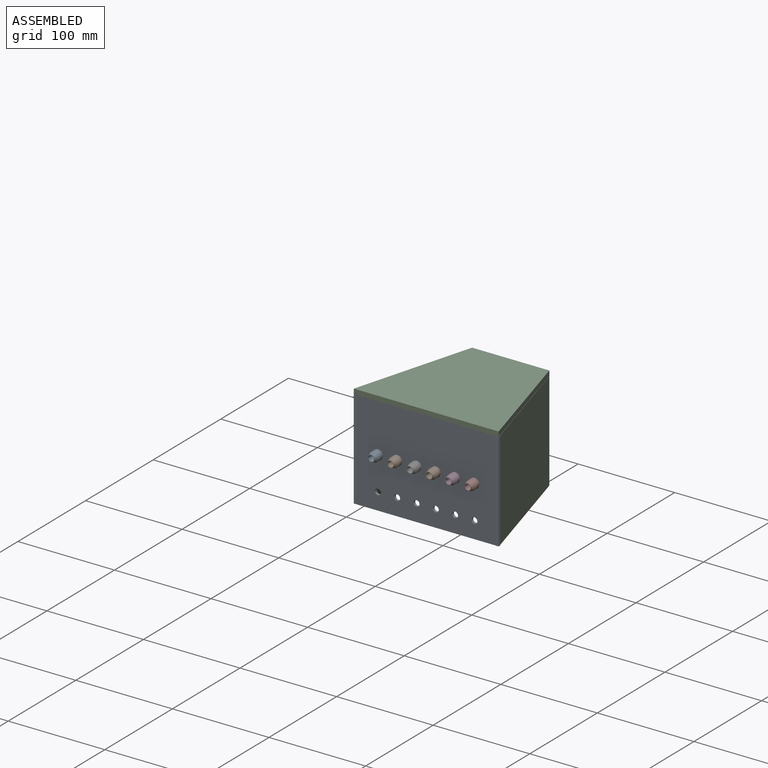
[diagram: assembled view]
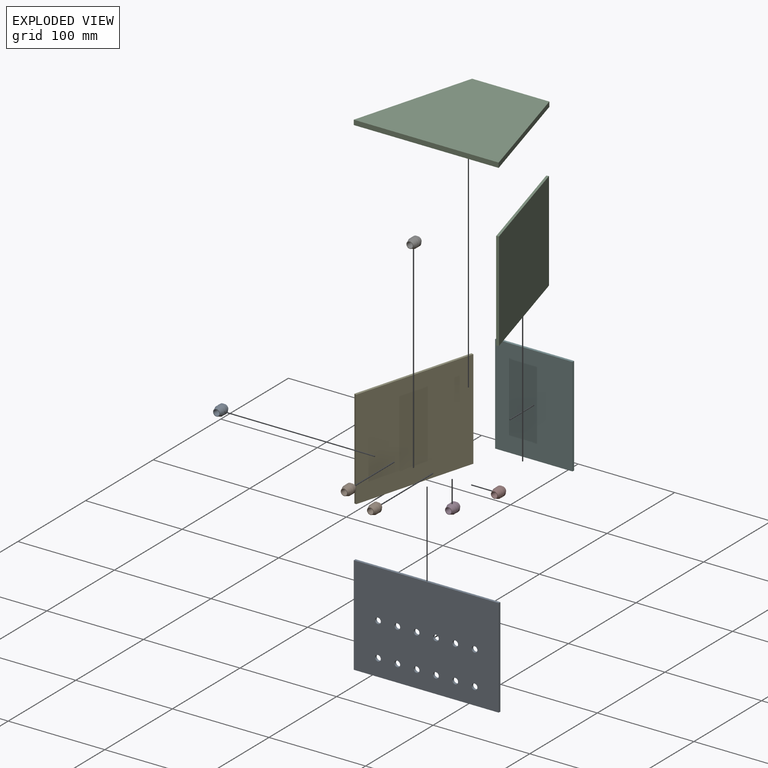
[diagram: exploded view]
GUIDED TOUR — MATED ASSEMBLY (Onshape document 8164049e80e0e85f0b8eb4ec, AutoMate assembly 8164049e80e0e85f0b8eb4ec_cf131b7ac0245d85ee86069a_5f289b0e228928b1679af581_default)

This assembly has 11 components, labeled P0..P10 below (a component is one placed occurrence of a part; the same part can appear more than once), held together by 10 mates. A mate is a constraint between two components; its type names the relative motion it leaves free:
  CYLINDRICAL — leaves both rotation about and translation along the listed axis free,
  FASTENED — locks the two components together rigidly (no relative motion).
Axis/direction vectors are unit vectors and 'through' points are millimeter coordinates, both in the assembly's world frame.

MATES
  1. CYLINDRICAL "Cylindrical 1": P10 <-> P4, axis (0.000, 0.000, -1.000) through (2.80, 108.94, -38.92) mm
  2. FASTENED "Fastened 6": P8 <-> P6, direction (0.000, 1.000, 0.000) through (50.30, 48.94, -88.92) mm
  3. FASTENED "Fastened 8": P8 <-> P7, direction (0.000, 1.000, 0.000) through (110.30, 48.94, -88.92) mm
  4. FASTENED "Fastened 1": P8 <-> P10, direction (0.000, 0.000, 1.000) through (60.30, 46.44, -38.92) mm
  5. FASTENED "Fastened 2": P5 <-> P10, direction (0.000, 0.000, 1.000) through (60.30, 171.44, -38.92) mm
  6. FASTENED "Fastened 7": P8 <-> P9, direction (0.000, 1.000, 0.000) through (70.30, 48.94, -88.92) mm
  7. CYLINDRICAL "Cylindrical 2": P10 <-> P2, axis (0.000, 0.000, -1.000) through (117.80, 108.94, -38.92) mm
  8. FASTENED "Fastened 5": P8 <-> P1, direction (0.000, 1.000, 0.000) through (30.30, 48.94, -88.92) mm
  9. FASTENED "Fastened 9": P8 <-> P0, direction (0.000, 1.000, 0.000) through (10.30, 48.94, -88.92) mm
  10. FASTENED "Fastened 10": P8 <-> P3, direction (0.000, 1.000, 0.000) through (90.30, 48.94, -88.92) mm

ASSEMBLY ORDER
  1. P4 — the base component [order verified]
  2. P2 [order verified]
  3. P5 [order verified]
  4. P1 [order verified]
  5. P9 [order verified]
  6. P8 [order verified]
  7. P6 [order verified]
  8. P3 [order verified]
  9. P0 [order verified]
  10. P7 [order verified]
  11. P10 [order verified]
(P5 verified with a relaxed clearance tolerance: the source model stores slight part interference there.)
Order-tag legend:
  [order verified] — this step's position reverses a verified removal order: the component was checked to insert without passing through the ones already placed.

Of the 11 components, 4 carry the full construction recipe — the FeatureScript program that regenerates the part's solid from scratch; the rest are supplied as boundary geometry only.
Each toured component is shown spotlighted twice — in the assembled view, then in the exploded view, where a leader line traces a displaced component back to its assembled socket (saturated green if recipe-attached, orange if geometry-only; every other component desaturated gray) — followed by its recipe or geometry summary and the mates that hold it.
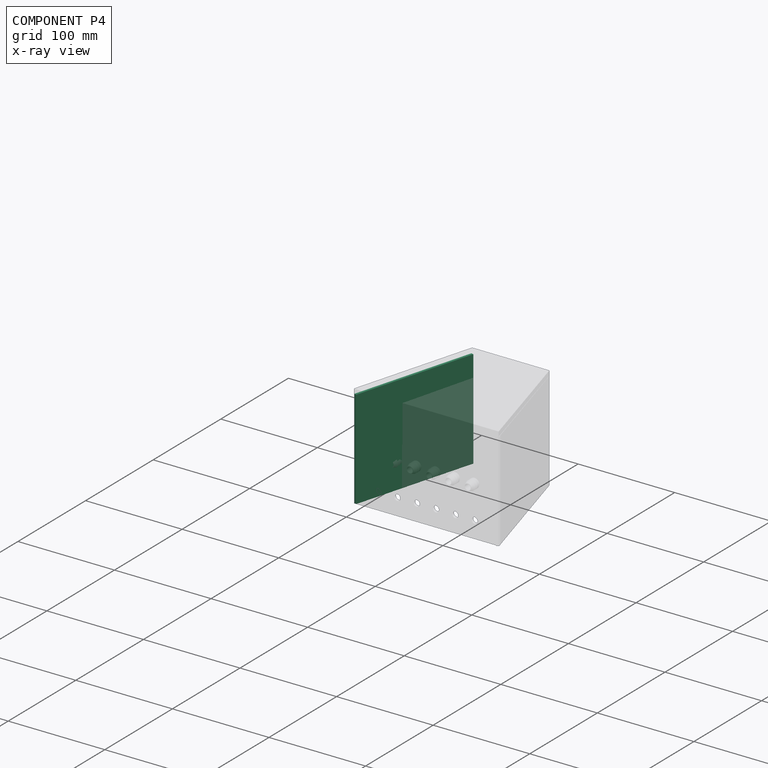
[diagram: component P4 — x-ray view]
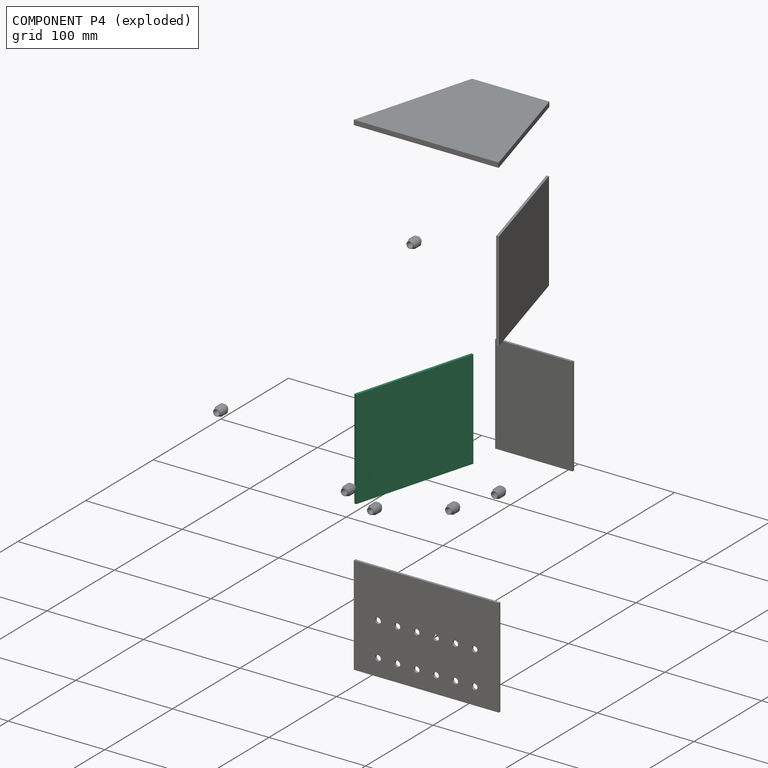
[diagram: component P4 — exploded]
COMPONENT P4 — same part as P2 (CADFS 00303909); its construction recipe is shown at P2.
Held by: CYLINDRICAL mate "Cylindrical 1" to P10.
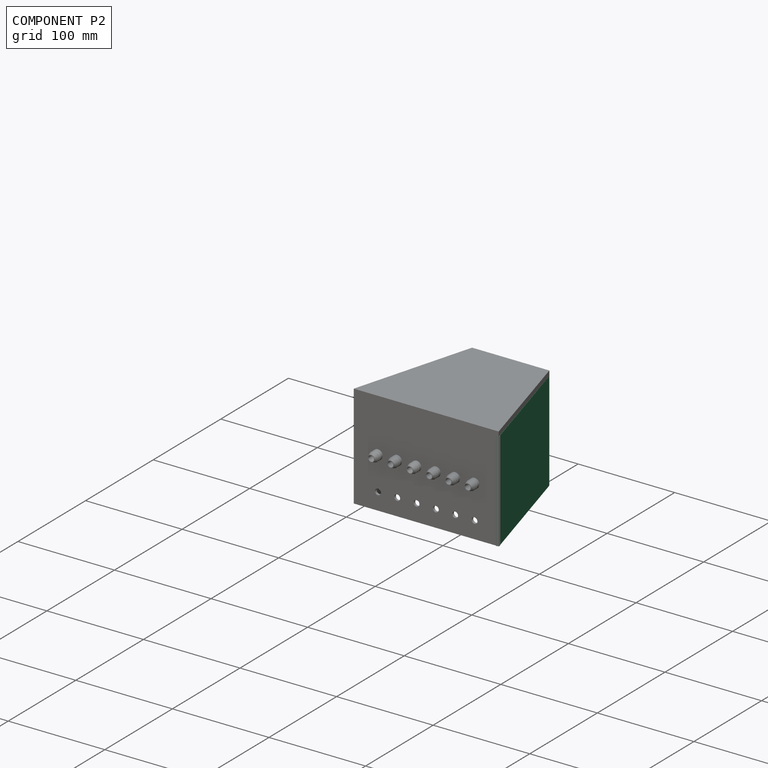
[diagram: component P2 — assembled]
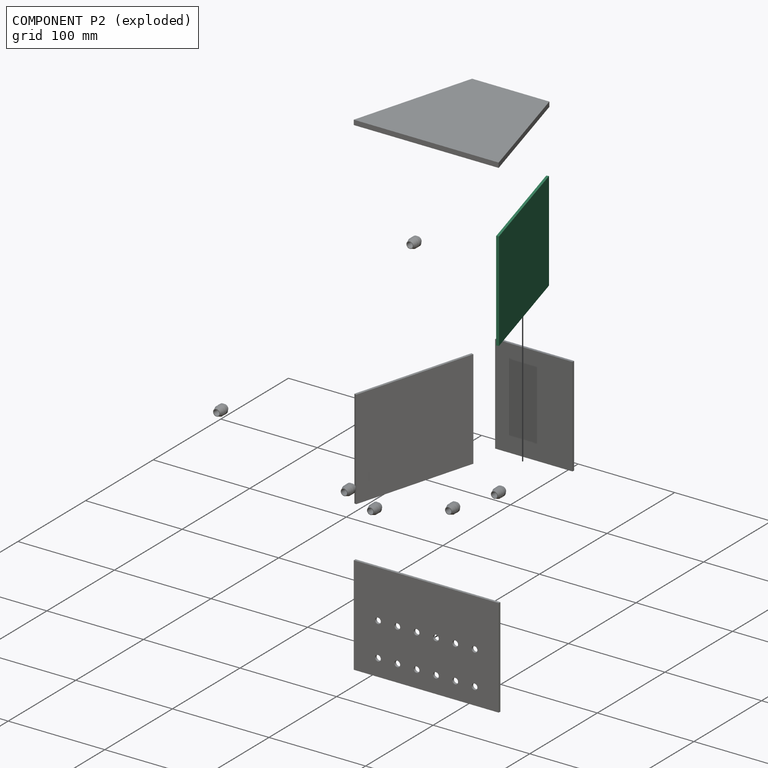
[diagram: component P2 — exploded]
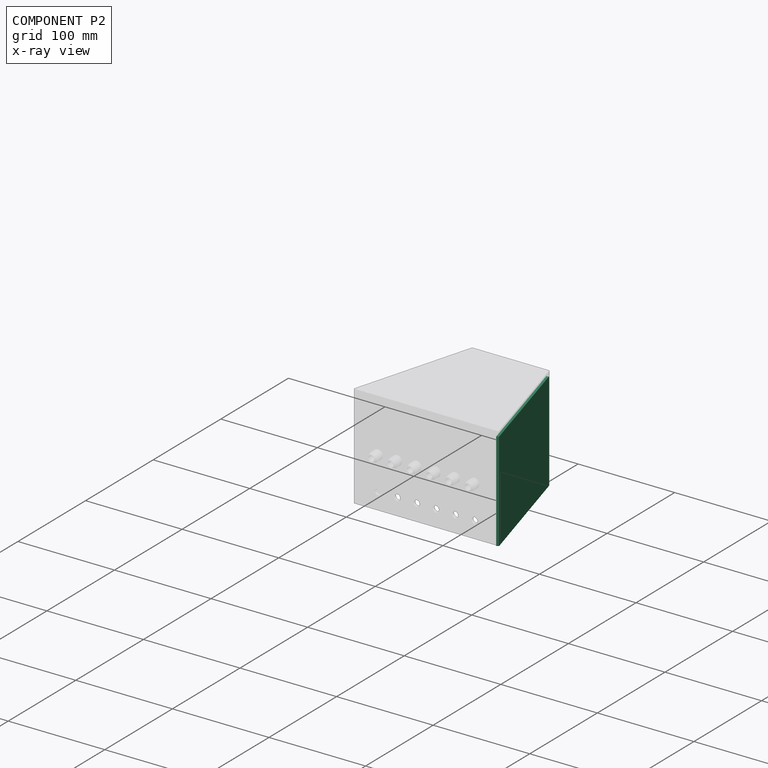
[diagram: component P2 — x-ray view]
COMPONENT P2 — recipe-attached (CADFS 00303909, mesh-verified: the recipe's output STEP matches this component's geometry to below the mesh-comparison resolution (tessellation chordal tolerance ~0.247 mm)).
Held by: CYLINDRICAL mate "Cylindrical 2" to P10.
Construction recipe (FeatureScript — the CAD program that rebuilds this solid; sketch coordinates are in the units given by the * unit suffixes, e.g. mm):

FeatureScript 1511;
import(path : "onshape/std/geometry.fs", version : "1511.0");
import(path : "onshape/std/common.fs", version : "1511.0");
const mm = millimeter;
const VERTEX = EntityType.VERTEX;
const EDGE = EntityType.EDGE;
const FACE = EntityType.FACE;
const BODY = EntityType.BODY;
function v(x, y){return vector(x, y);}
function OD(order){return orderDisambiguation(order);}
function OSD(set){return originalSetDisambiguation(set);}
function TD(topology){return topologyDisambiguation(topology);}
function TDD(query){return trueDependencyDisambiguation(query);}
function sQuery(a, b, c) {return sketchEntityQuery(a, b, c);}

annotation { "Feature Type Name" : "Feature", "Feature Type Description" : "" }
export const myFeature = defineFeature(function(context is Context, id is Id, definition is map)
    precondition{}
    {
        {
            var Q0;
            Q0=qCreatedBy(makeId("Front.planeOp"),FACE);
            var sketch = newSketch(context, id + "F0", { "sketchPlane" : qUnion([Q0])});
            skLineSegment(sketch, "E0.bottom", {"start": v(64.25, -51.25) * mm, "end": v(-64.25, -51.25) * mm});
            skLineSegment(sketch, "E0.top", {"start": v(64.25, 51.25) * mm, "end": v(-64.25, 51.25) * mm});
            skLineSegment(sketch, "E0.left", {"start": v(64.25, -51.25) * mm, "end": v(64.25, 51.25) * mm});
            skLineSegment(sketch, "E0.right", {"start": v(-64.25, -51.25) * mm, "end": v(-64.25, 51.25) * mm});
            skPoint(sketch, "E0.middle", {"position": v(0, 0) * mm});
            skSolve(sketch);
        }
        {
            var Q0;
            Q0 = qSketchRegion(id + "F0", true);
            extrude(context, id + "F1", {"entities" : qUnion([Q0]), "endBound" : BoundingType.SYMMETRIC, "depth" : 2.5 * mm});
        }
    });
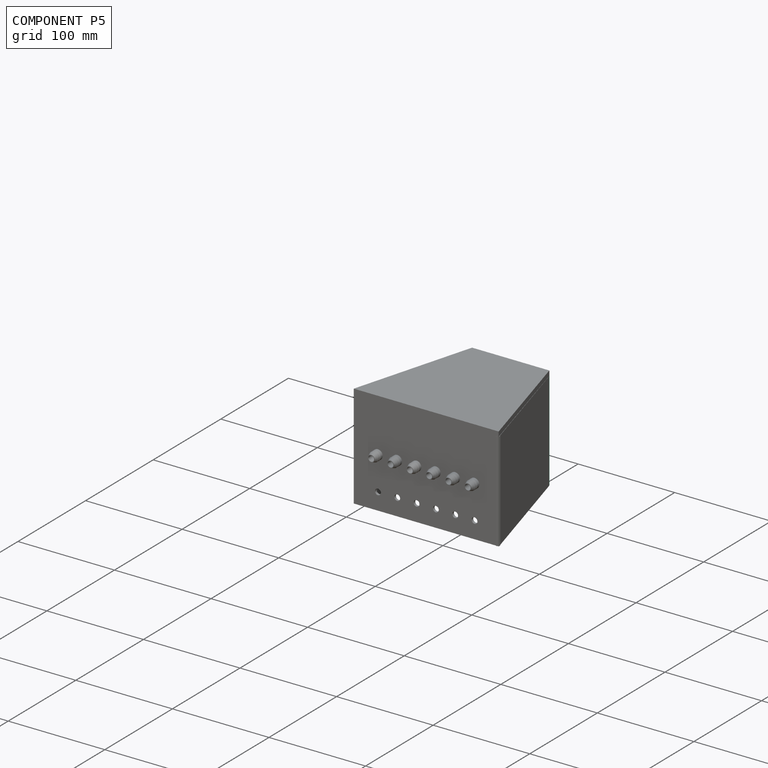
[diagram: component P5 — assembled]
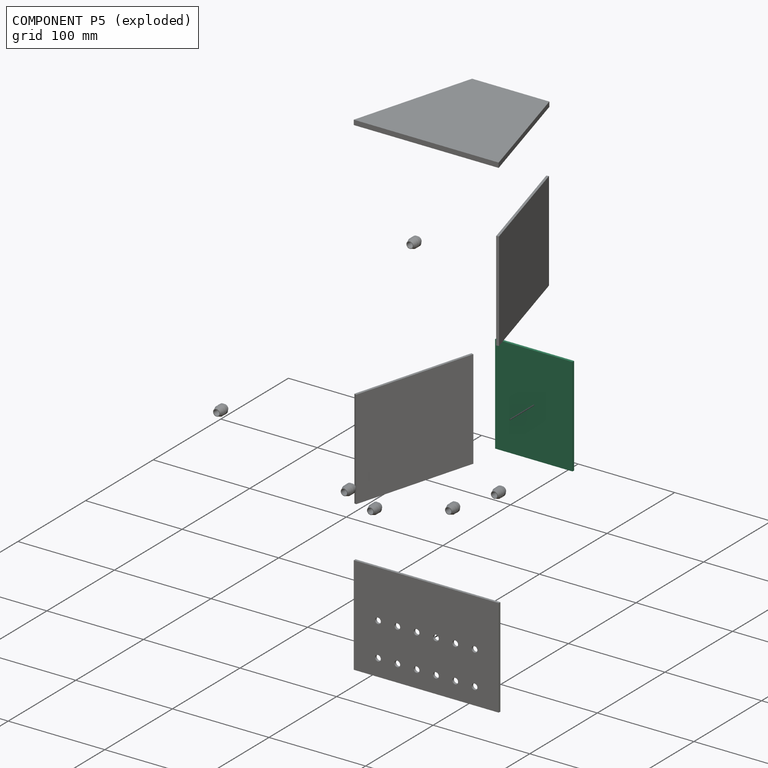
[diagram: component P5 — exploded]
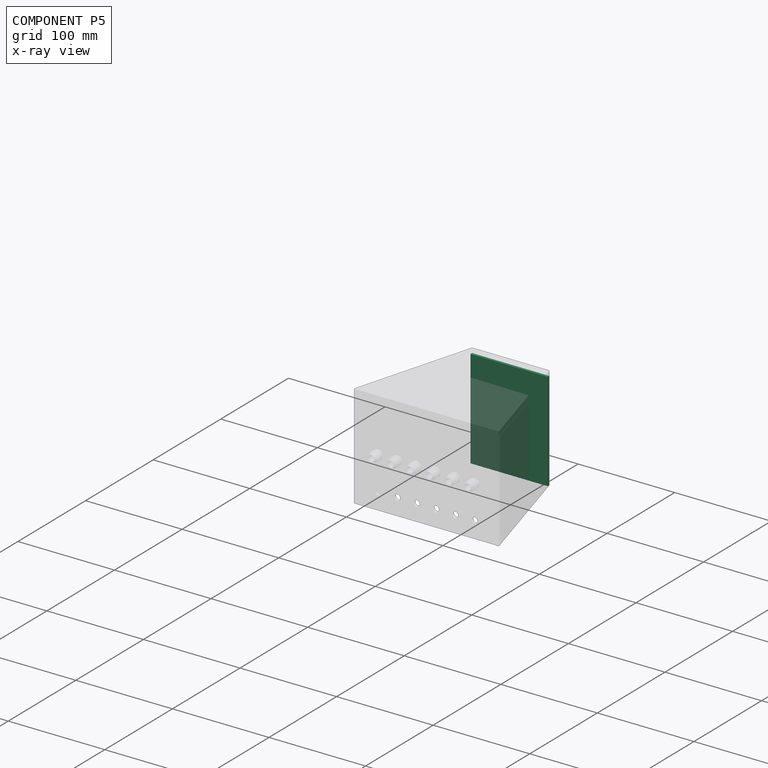
[diagram: component P5 — x-ray view]
COMPONENT P5 — recipe-attached (CADFS 00303905, mesh-verified: the recipe's output STEP matches this component's geometry to below the mesh-comparison resolution (tessellation chordal tolerance ~0.195 mm)).
Held by: FASTENED mate "Fastened 2" to P10.
Construction recipe (FeatureScript — the CAD program that rebuilds this solid; sketch coordinates are in the units given by the * unit suffixes, e.g. mm):

FeatureScript 1511;
import(path : "onshape/std/geometry.fs", version : "1511.0");
import(path : "onshape/std/common.fs", version : "1511.0");
const mm = millimeter;
const VERTEX = EntityType.VERTEX;
const EDGE = EntityType.EDGE;
const FACE = EntityType.FACE;
const BODY = EntityType.BODY;
function v(x, y){return vector(x, y);}
function OD(order){return orderDisambiguation(order);}
function OSD(set){return originalSetDisambiguation(set);}
function TD(topology){return topologyDisambiguation(topology);}
function TDD(query){return trueDependencyDisambiguation(query);}
function sQuery(a, b, c) {return sketchEntityQuery(a, b, c);}

annotation { "Feature Type Name" : "Feature", "Feature Type Description" : "" }
export const myFeature = defineFeature(function(context is Context, id is Id, definition is map)
    precondition{}
    {
        {
            var Q0;
            Q0=qCreatedBy(makeId("Front.planeOp"),FACE);
            var sketch = newSketch(context, id + "F0", { "sketchPlane" : qUnion([Q0])});
            skLineSegment(sketch, "E0.bottom", {"start": v(40, -51.25) * mm, "end": v(-40, -51.25) * mm});
            skLineSegment(sketch, "E0.top", {"start": v(40, 51.25) * mm, "end": v(-40, 51.25) * mm});
            skLineSegment(sketch, "E0.left", {"start": v(40, -51.25) * mm, "end": v(40, 51.25) * mm});
            skLineSegment(sketch, "E0.right", {"start": v(-40, -51.25) * mm, "end": v(-40, 51.25) * mm});
            skPoint(sketch, "E0.middle", {"position": v(0, 0) * mm});
            skSolve(sketch);
        }
        {
            var Q0;
            Q0=qSketchRegion(id+"F0",true);
            extrude(context, id + "F1", {"entities" : qUnion([Q0]), "depth" : 2.5 * mm});
        }
    });
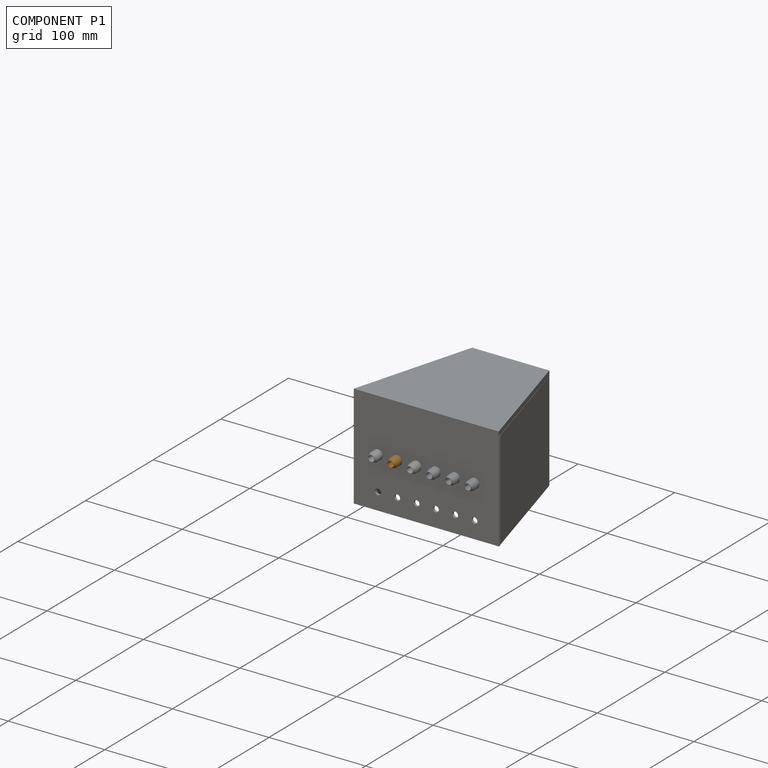
[diagram: component P1 — assembled]
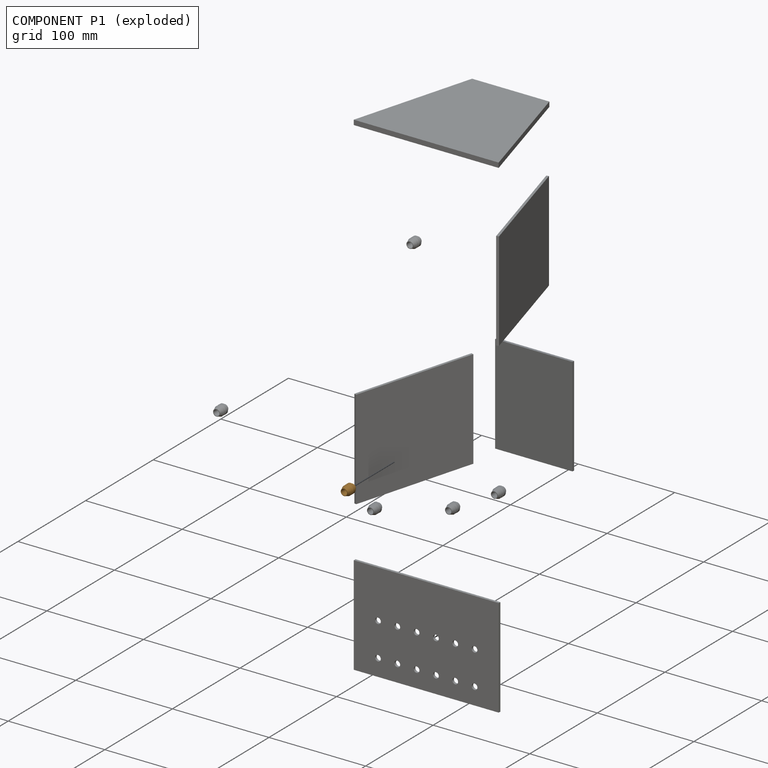
[diagram: component P1 — exploded]
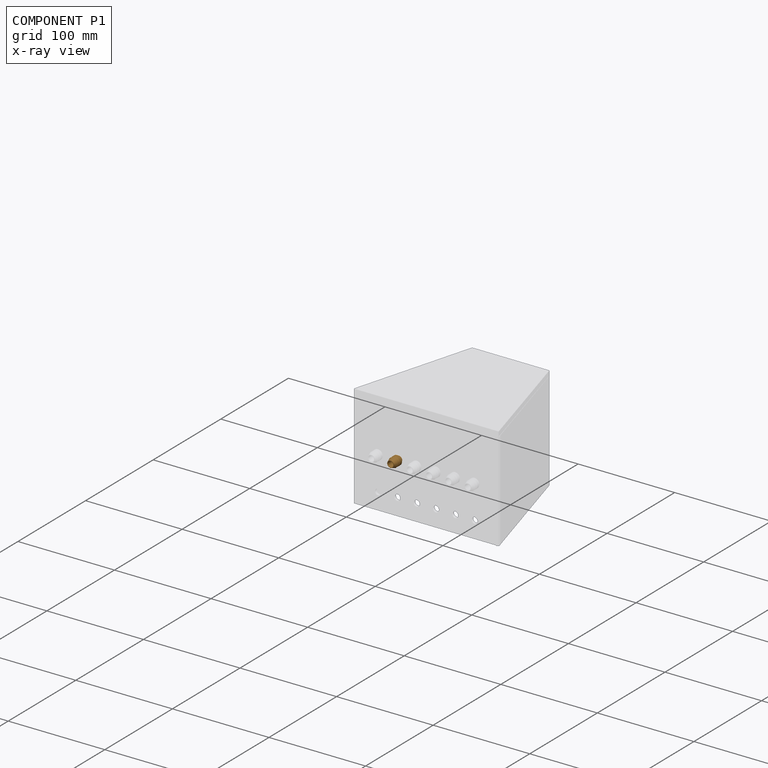
[diagram: component P1 — x-ray view]
COMPONENT P1 — geometry summary (no construction recipe available for this part):
  bounding box: 12.5 x 11.5 x 11.5 mm
  B-rep topology: 1 solid, 10 faces, 42 edges
  volume: 397 mm^3 (24% of its bounding box)
  symmetry: revolution-symmetric about the z axis through its bounding-box center; mirror-symmetric across its x mid-plane, y mid-plane
Held by: FASTENED mate "Fastened 5" to P8.
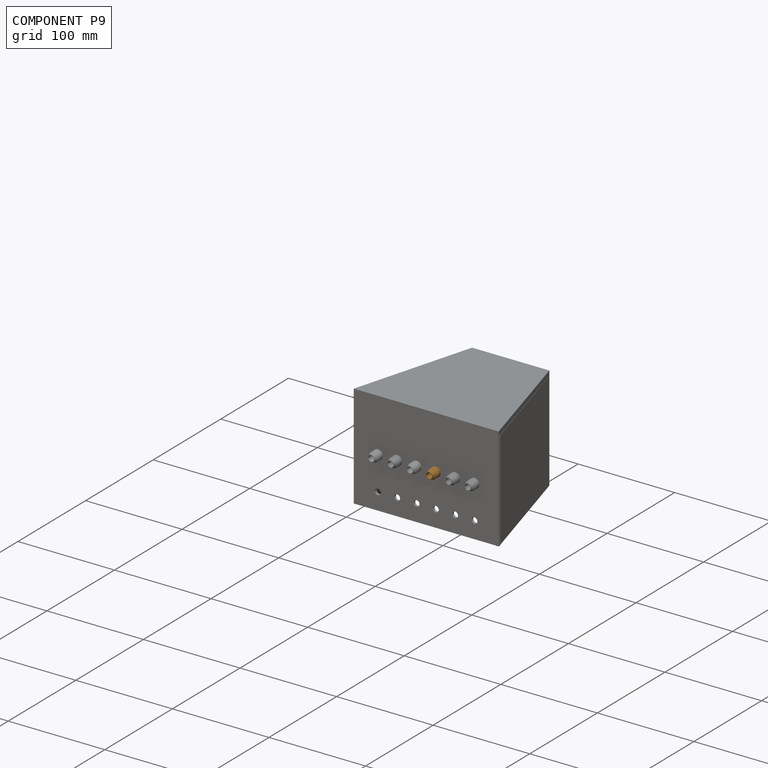
[diagram: component P9 — assembled]
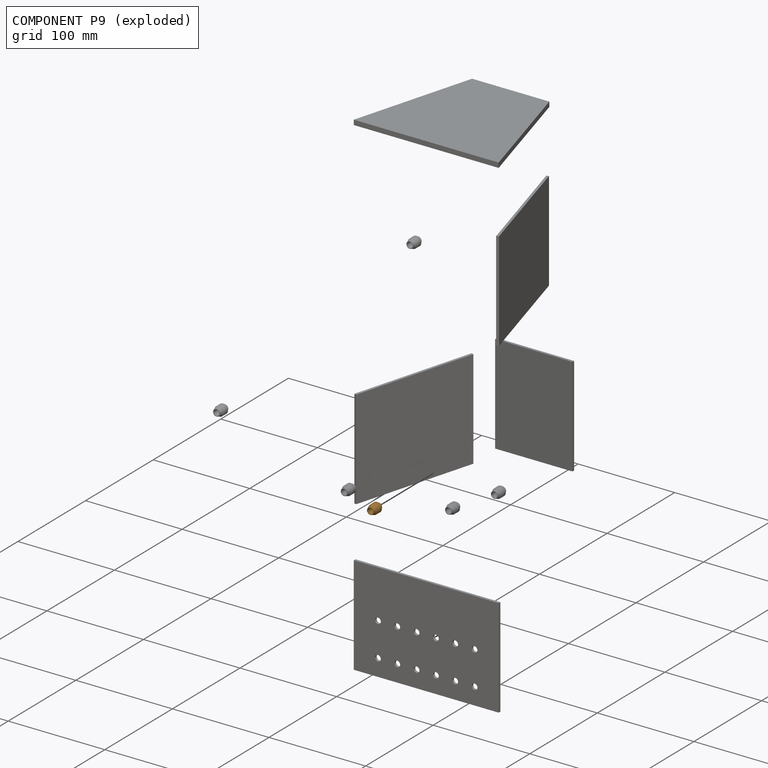
[diagram: component P9 — exploded]
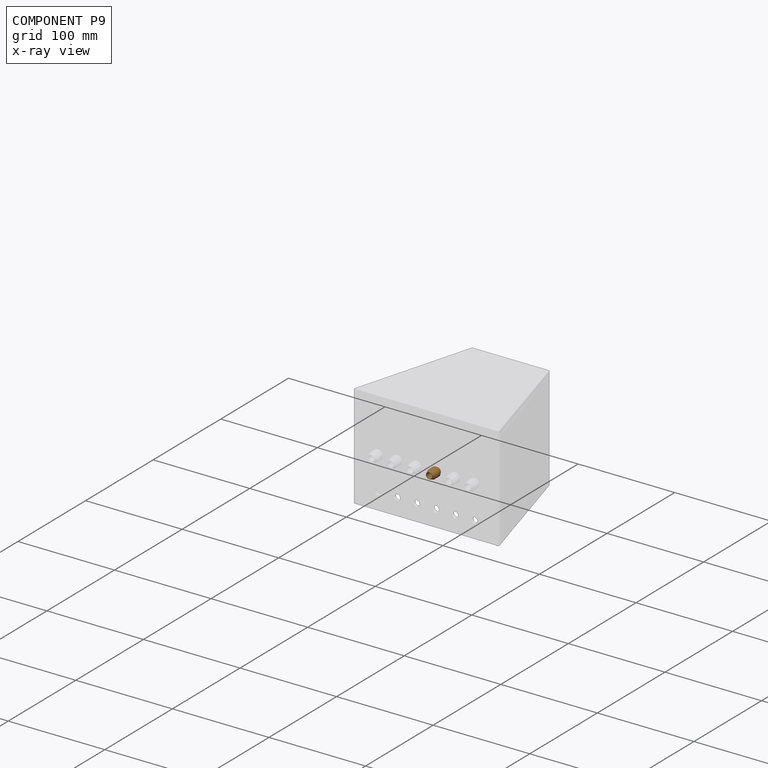
[diagram: component P9 — x-ray view]
COMPONENT P9 — geometry summary (no construction recipe available for this part):
  bounding box: 12.5 x 11.5 x 11.5 mm
  B-rep topology: 1 solid, 10 faces, 42 edges
  volume: 397 mm^3 (24% of its bounding box)
  symmetry: revolution-symmetric about the z axis through its bounding-box center; mirror-symmetric across its x mid-plane, y mid-plane
Held by: FASTENED mate "Fastened 7" to P8.
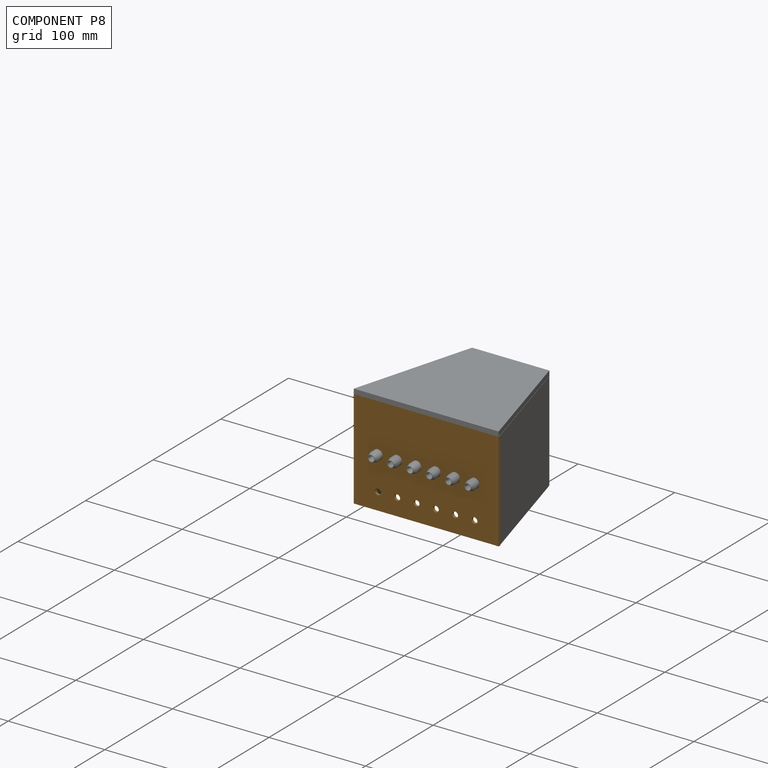
[diagram: component P8 — assembled]
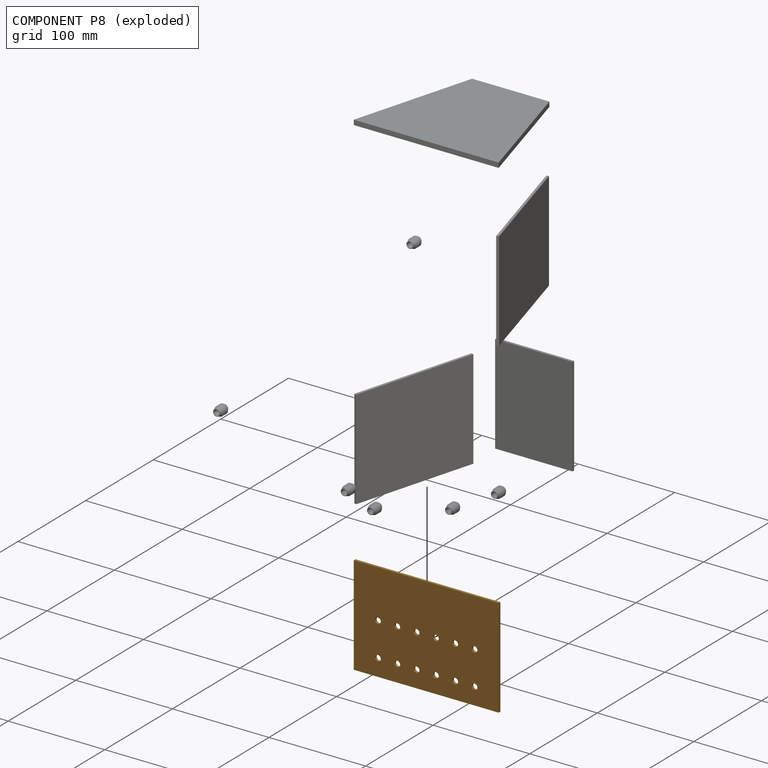
[diagram: component P8 — exploded]
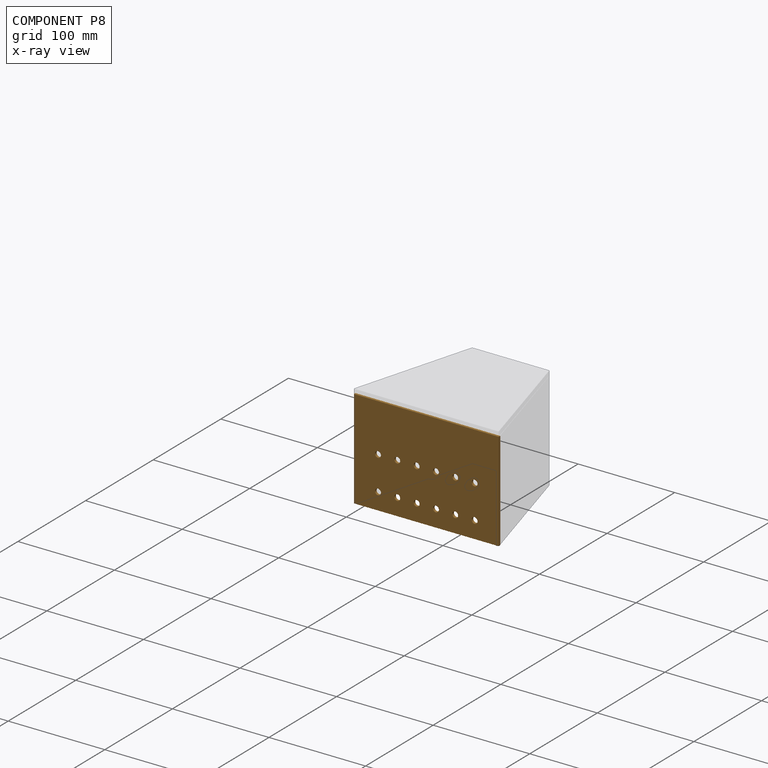
[diagram: component P8 — x-ray view]
COMPONENT P8 — geometry summary (no construction recipe available for this part):
  bounding box: 150.0 x 102.5 x 2.5 mm
  B-rep topology: 1 solid, 18 faces, 96 edges
  volume: 37589 mm^3 (98% of its bounding box)
  symmetry: 2-fold rotationally symmetric about the z axis; mirror-symmetric across its x mid-plane, y mid-plane
Held by: FASTENED mate "Fastened 6" to P6; FASTENED mate "Fastened 8" to P7; FASTENED mate "Fastened 1" to P10; FASTENED mate "Fastened 7" to P9; FASTENED mate "Fastened 5" to P1; FASTENED mate "Fastened 9" to P0; FASTENED mate "Fastened 10" to P3.
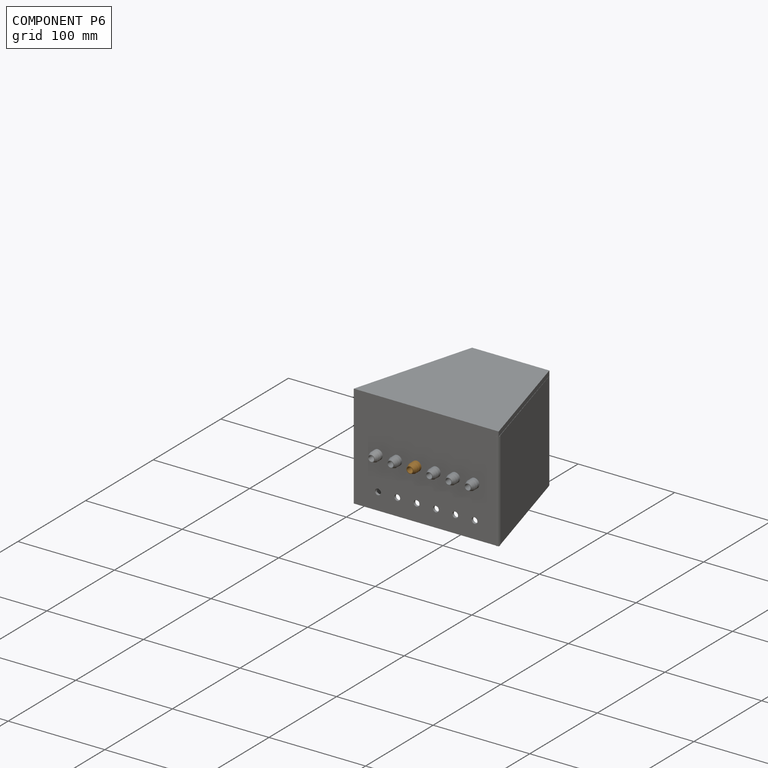
[diagram: component P6 — assembled]
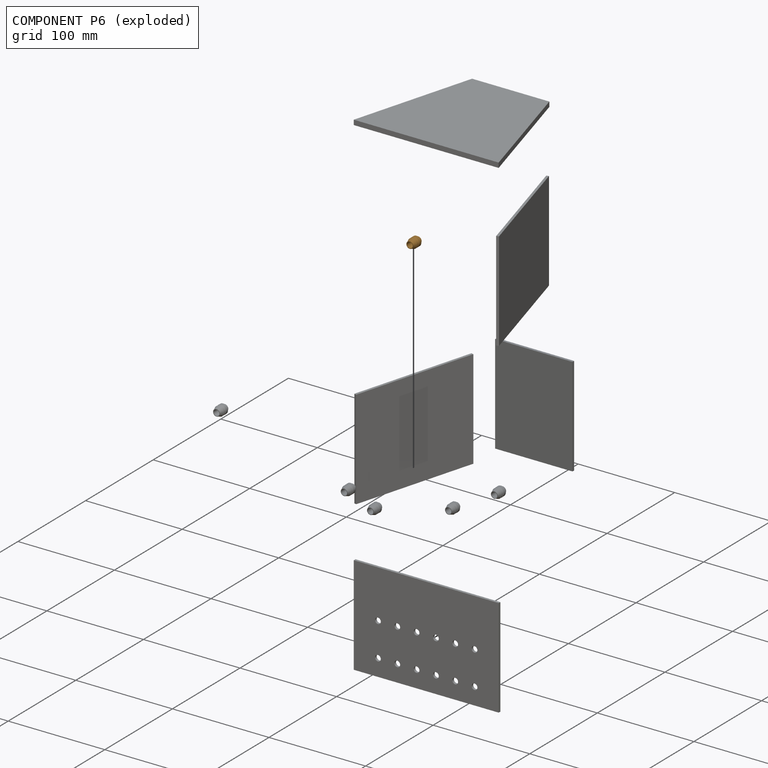
[diagram: component P6 — exploded]
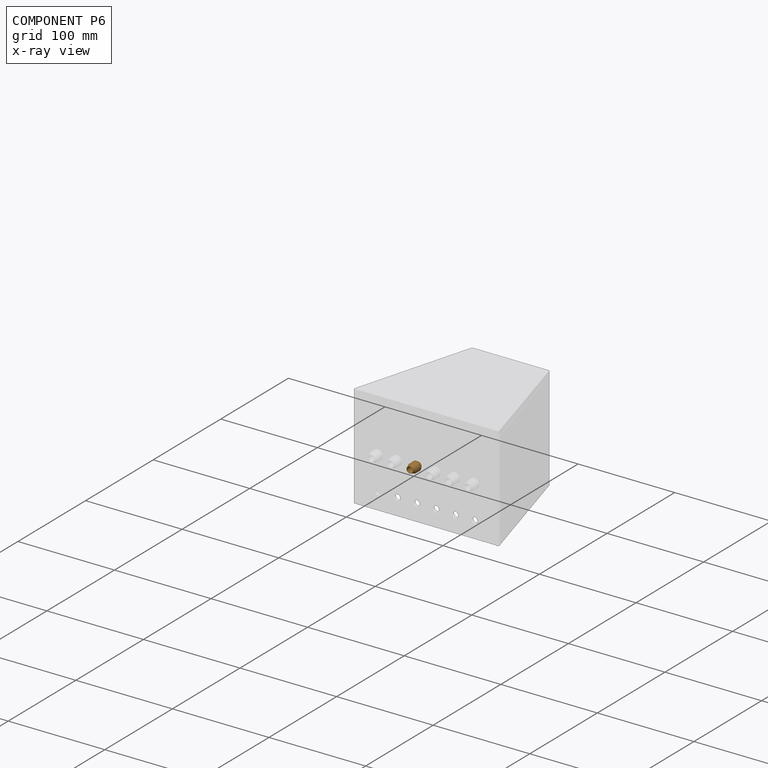
[diagram: component P6 — x-ray view]
COMPONENT P6 — geometry summary (no construction recipe available for this part):
  bounding box: 12.5 x 11.5 x 11.5 mm
  B-rep topology: 1 solid, 10 faces, 42 edges
  volume: 397 mm^3 (24% of its bounding box)
  symmetry: revolution-symmetric about the z axis through its bounding-box center; mirror-symmetric across its x mid-plane, y mid-plane
Held by: FASTENED mate "Fastened 6" to P8.
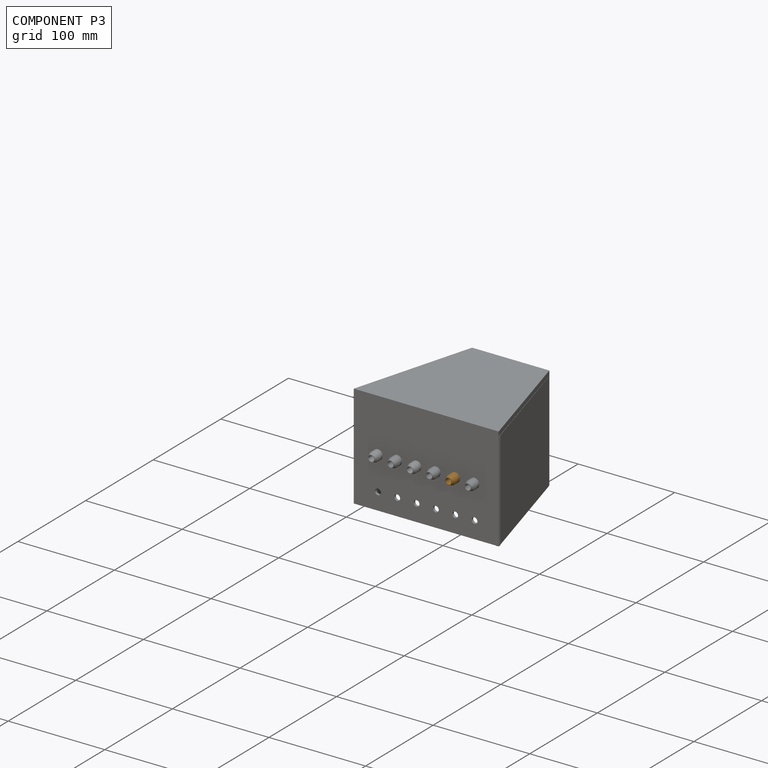
[diagram: component P3 — assembled]
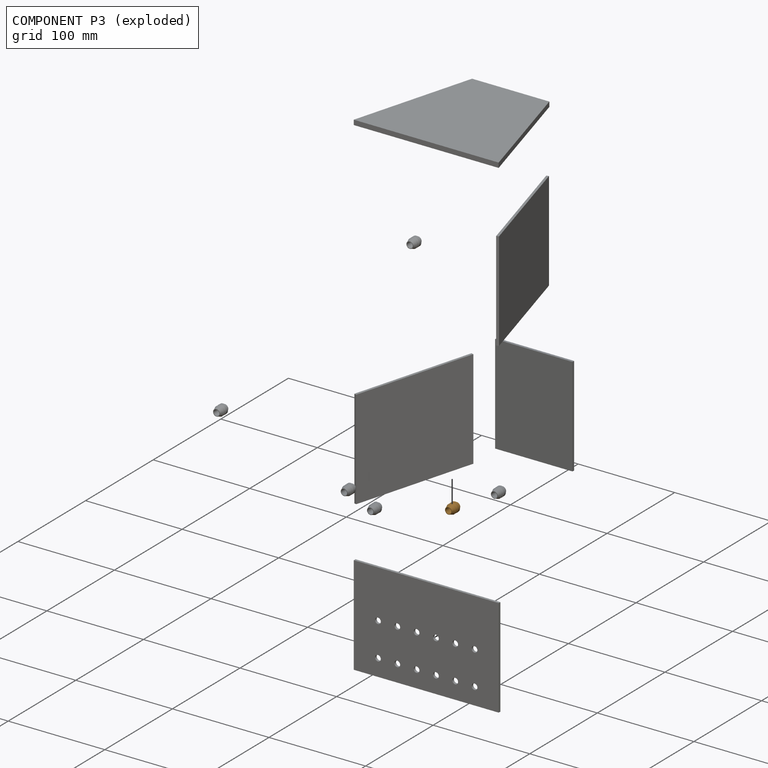
[diagram: component P3 — exploded]
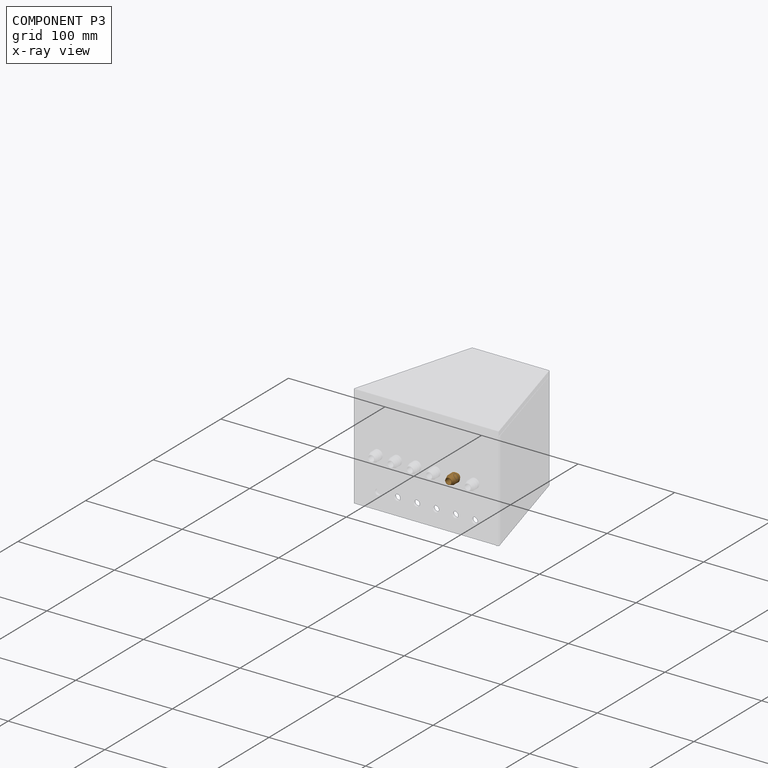
[diagram: component P3 — x-ray view]
COMPONENT P3 — geometry summary (no construction recipe available for this part):
  bounding box: 12.5 x 11.5 x 11.5 mm
  B-rep topology: 1 solid, 10 faces, 42 edges
  volume: 397 mm^3 (24% of its bounding box)
  symmetry: revolution-symmetric about the z axis through its bounding-box center; mirror-symmetric across its x mid-plane, y mid-plane
Held by: FASTENED mate "Fastened 10" to P8.
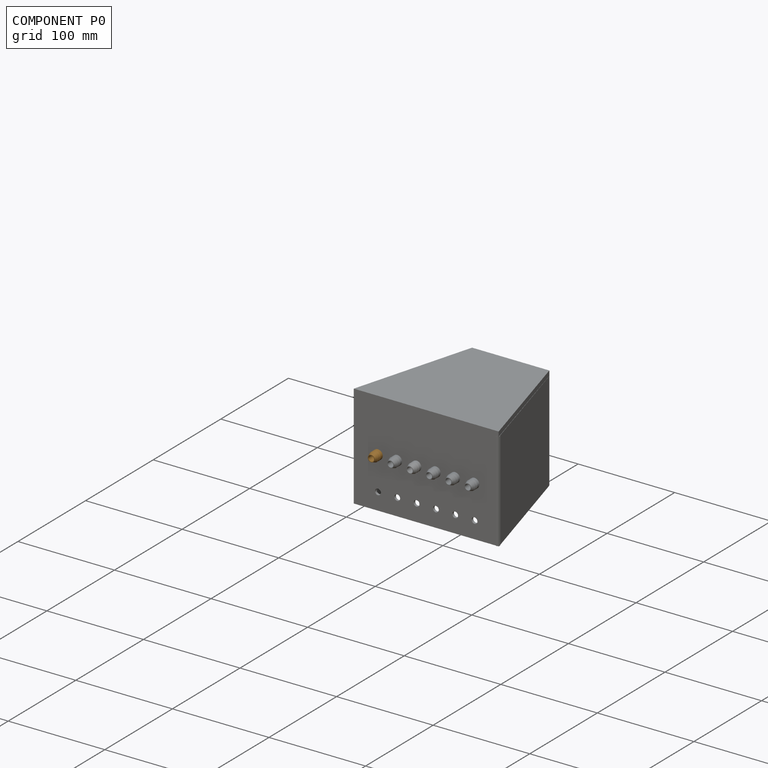
[diagram: component P0 — assembled]
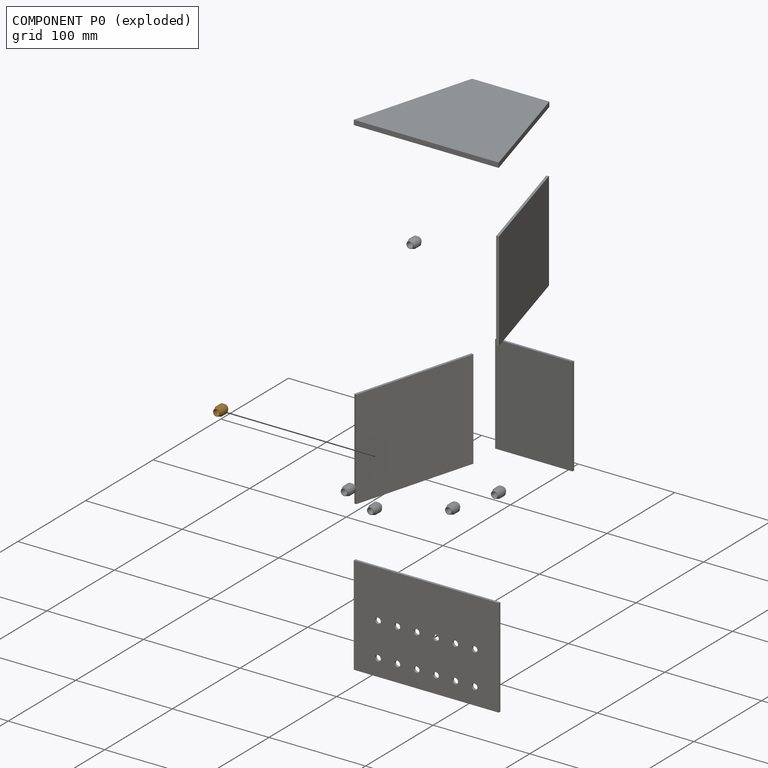
[diagram: component P0 — exploded]
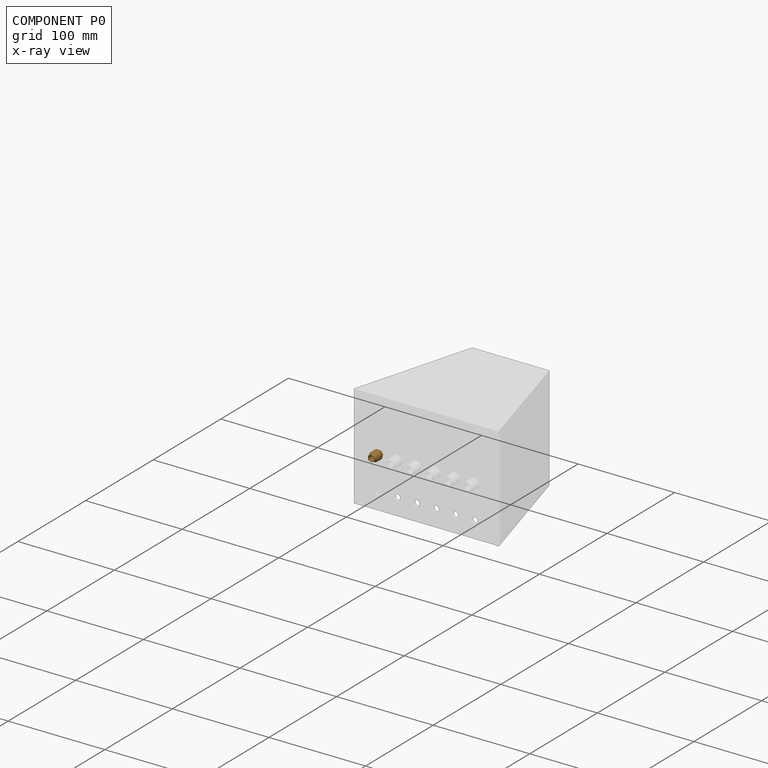
[diagram: component P0 — x-ray view]
COMPONENT P0 — geometry summary (no construction recipe available for this part):
  bounding box: 12.5 x 11.5 x 11.5 mm
  B-rep topology: 1 solid, 10 faces, 42 edges
  volume: 397 mm^3 (24% of its bounding box)
  symmetry: revolution-symmetric about the z axis through its bounding-box center; mirror-symmetric across its x mid-plane, y mid-plane
Held by: FASTENED mate "Fastened 9" to P8.
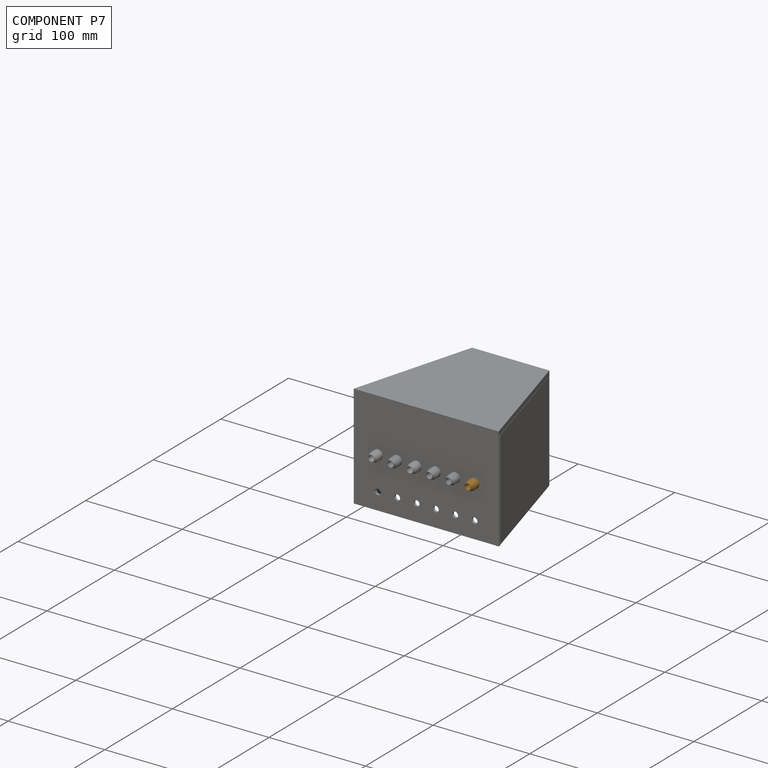
[diagram: component P7 — assembled]
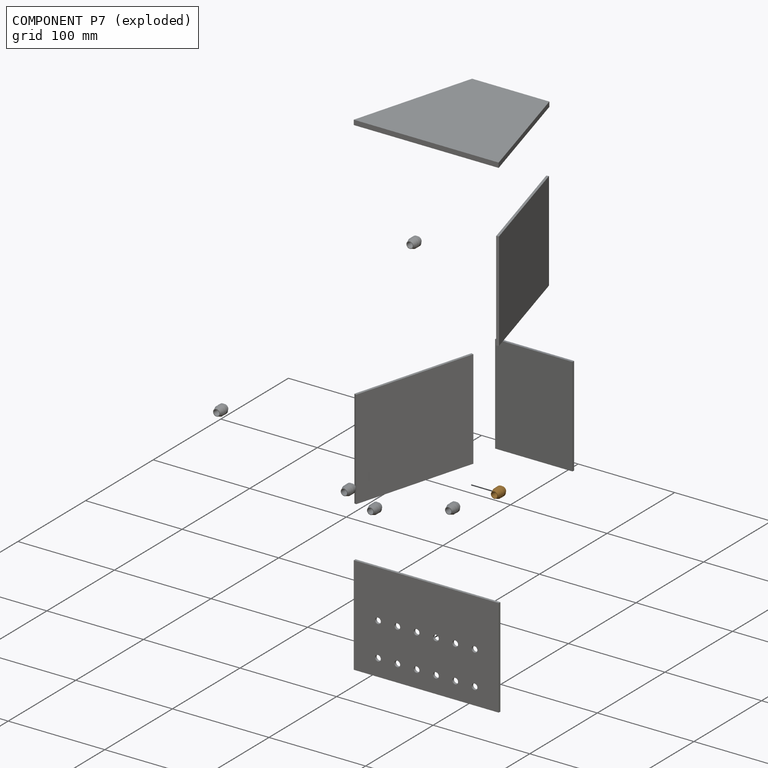
[diagram: component P7 — exploded]
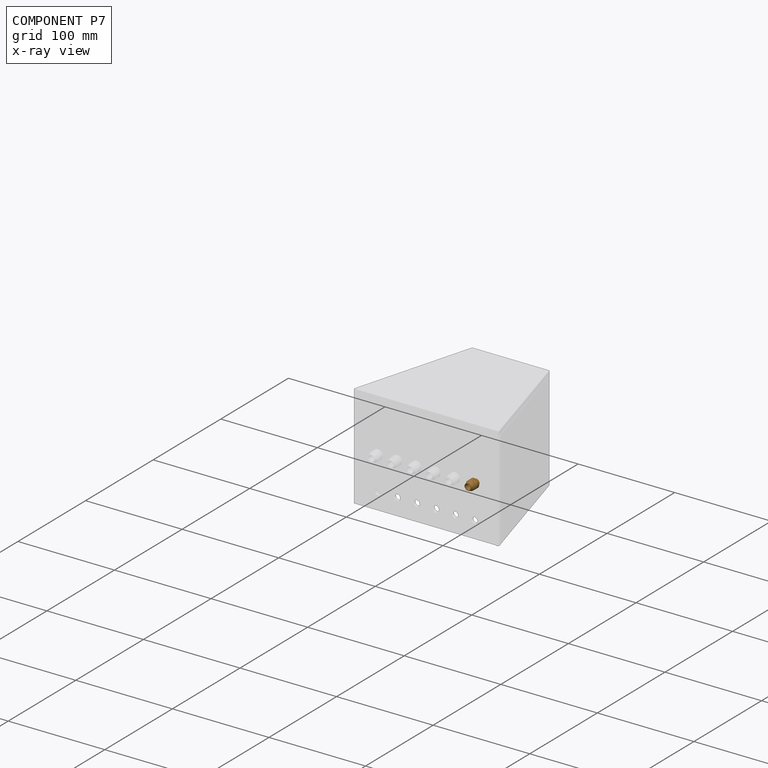
[diagram: component P7 — x-ray view]
COMPONENT P7 — geometry summary (no construction recipe available for this part):
  bounding box: 12.5 x 11.5 x 11.5 mm
  B-rep topology: 1 solid, 10 faces, 42 edges
  volume: 397 mm^3 (24% of its bounding box)
  symmetry: revolution-symmetric about the z axis through its bounding-box center; mirror-symmetric across its x mid-plane, y mid-plane
Held by: FASTENED mate "Fastened 8" to P8.
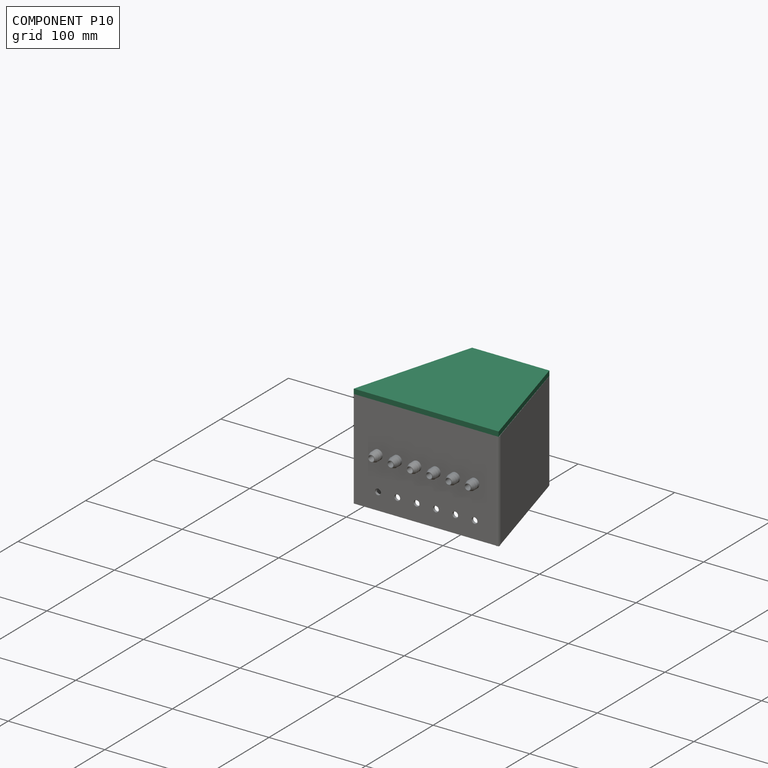
[diagram: component P10 — assembled]
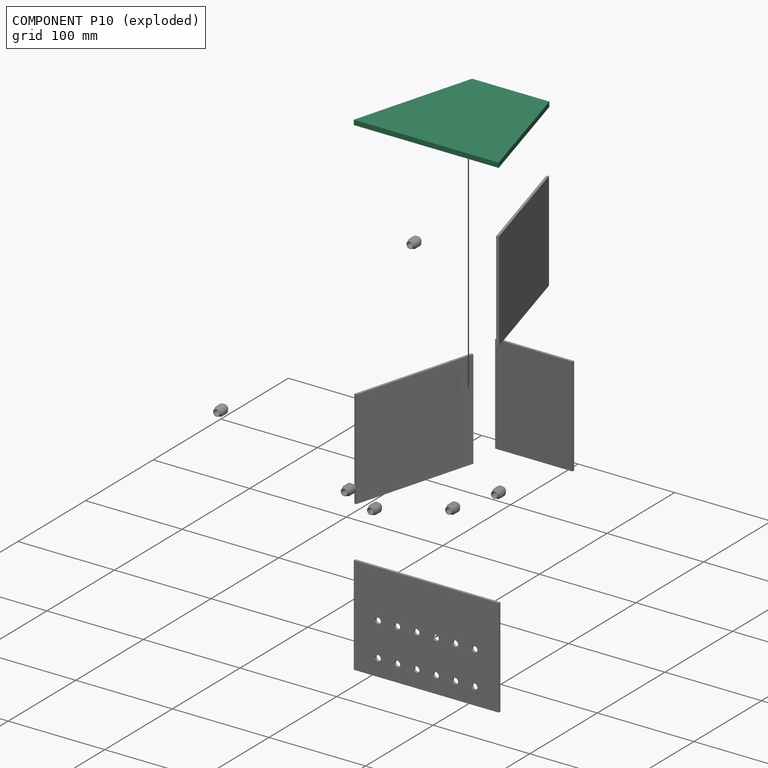
[diagram: component P10 — exploded]
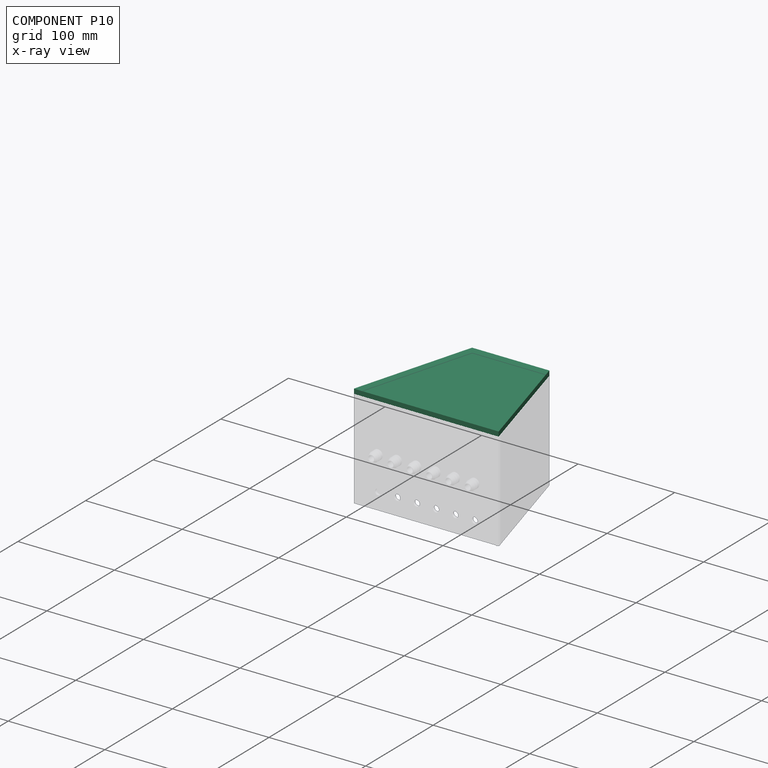
[diagram: component P10 — x-ray view]
COMPONENT P10 — recipe-attached (CADFS 00303904, mesh-verified: the recipe's output STEP matches this component's geometry to below the mesh-comparison resolution (tessellation chordal tolerance ~0.293 mm)).
Held by: CYLINDRICAL mate "Cylindrical 1" to P4; FASTENED mate "Fastened 1" to P8; FASTENED mate "Fastened 2" to P5; CYLINDRICAL mate "Cylindrical 2" to P2.
Construction recipe (FeatureScript — the CAD program that rebuilds this solid; sketch coordinates are in the units given by the * unit suffixes, e.g. mm):

FeatureScript 1511;
import(path : "onshape/std/geometry.fs", version : "1511.0");
import(path : "onshape/std/common.fs", version : "1511.0");
const mm = millimeter;
const VERTEX = EntityType.VERTEX;
const EDGE = EntityType.EDGE;
const FACE = EntityType.FACE;
const BODY = EntityType.BODY;
function v(x, y){return vector(x, y);}
function OD(order){return orderDisambiguation(order);}
function OSD(set){return originalSetDisambiguation(set);}
function TD(topology){return topologyDisambiguation(topology);}
function TDD(query){return trueDependencyDisambiguation(query);}
function sQuery(a, b, c) {return sketchEntityQuery(a, b, c);}

annotation { "Feature Type Name" : "Feature", "Feature Type Description" : "" }
export const myFeature = defineFeature(function(context is Context, id is Id, definition is map)
    precondition{}
    {
        {
            var Q0;
            Q0=qCreatedBy(makeId("Top.planeOp"),FACE);
            var sketch = newSketch(context, id + "F0", { "sketchPlane" : qUnion([Q0])});
            skLineSegment(sketch, "E0", {"start": v(-92.66, 125) * mm, "end": v(-12.66, 125) * mm});
            skLineSegment(sketch, "E1", {"start": v(-12.66, 125) * mm, "end": v(22.34, 0) * mm});
            skLineSegment(sketch, "E2", {"start": v(22.34, 0) * mm, "end": v(-127.66, 0) * mm});
            skLineSegment(sketch, "E3", {"start": v(-127.66, 0) * mm, "end": v(-92.66, 125) * mm});
            skSolve(sketch);
        }
        {
            var Q0;
            Q0=makeQuery(id+"F0.imprint","IMPRINT",FACE,{"disambiguationData":[TD([[makeQuery(id+"F0.imprint","IMPRINT",EDGE,{"derivedFrom":sQuery(id+"F0.wireOp",EDGE,"E0")}),-1.0]])]});
            extrude(context, id + "F1", {"entities" : qUnion([Q0]), "depth" : 5 * mm});
        }
    });
PROVENANCE & LICENSES
Assembly (occurrences, transforms, mates, per-part STEP geometry): AutoMate dataset, Zenodo record 7776208, CC0.
Construction recipes: CADFS (HuggingFace VladPyatov/CADFS, CC-BY-4.0, layered over the ABC dataset), FeatureScript reconstruction programs keyed by ABC model id.
Join: ABC meta listings map ABC model id -> Onshape documentId; within a shared document, parts are matched by geometric signature (bounding-box dims + volume at 0.1% relative tolerance, exact B-rep face/solid counts).
Verification: 4 of this assembly's 11 components carry a recipe attachment, and every attachment is mesh-verified: the CADFS STEP and the AutoMate member STEP were compared as meshes in their shared local frame (symmetric sampled-point-to-mesh distance); worst across the 4 attachments: below the mesh-comparison resolution (tessellation chordal tolerance ~0.293 mm) on a 195 mm part.
Renders: orthographic iso camera (az 35 / el 25); the floor grid conveys scale (grid pitch printed in each image; no ruler). In the exploded view each component is displaced by its stored offset vector: the offsets alone carry the explosion direction (mate normal/axis signs are not orientation cues and do not encode it), and separation distances are assigned per mate-chain, not proportionally to assembly-order depth.
